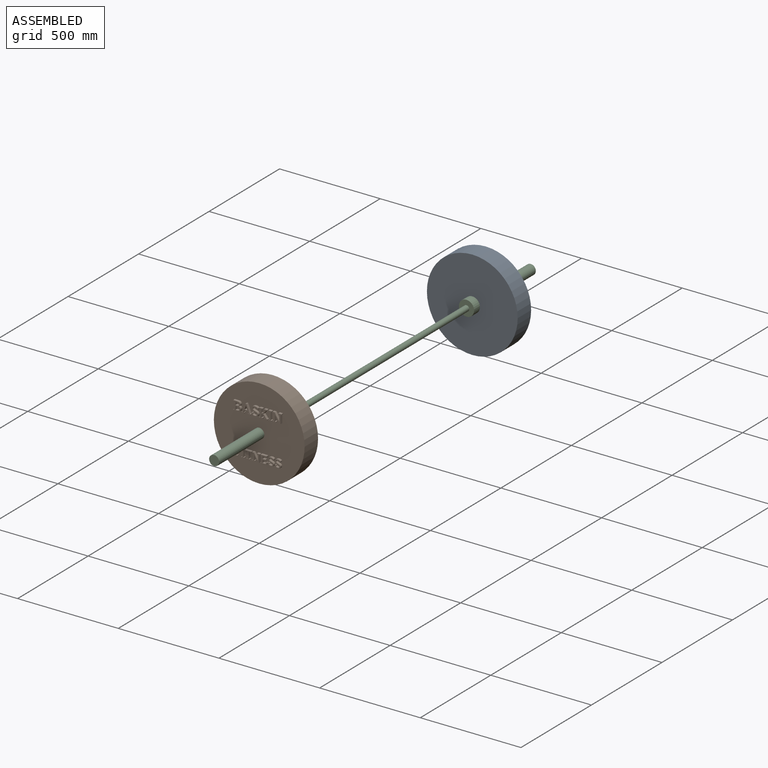
[diagram: assembled view]
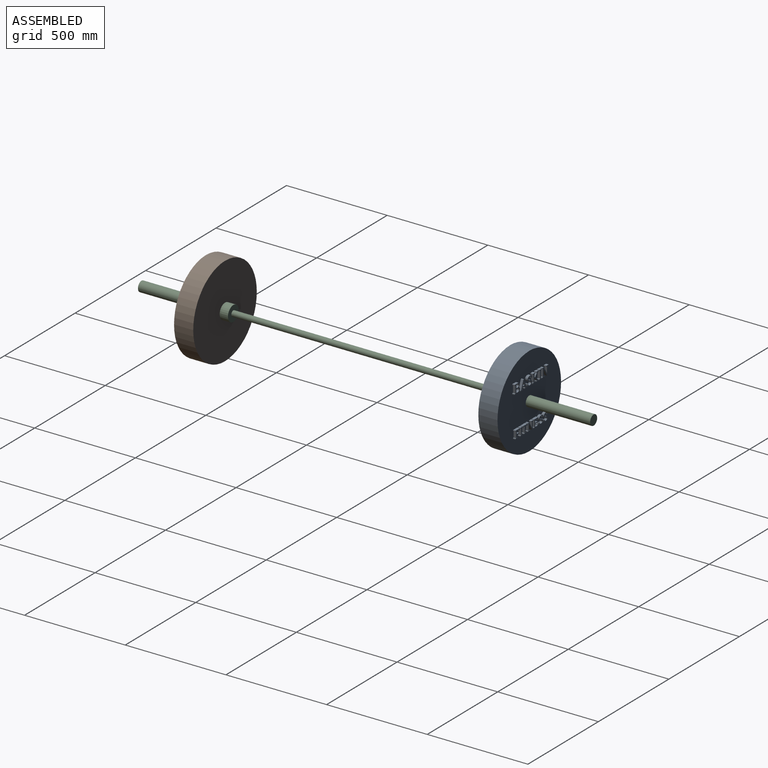
[diagram: assembled view, second angle]
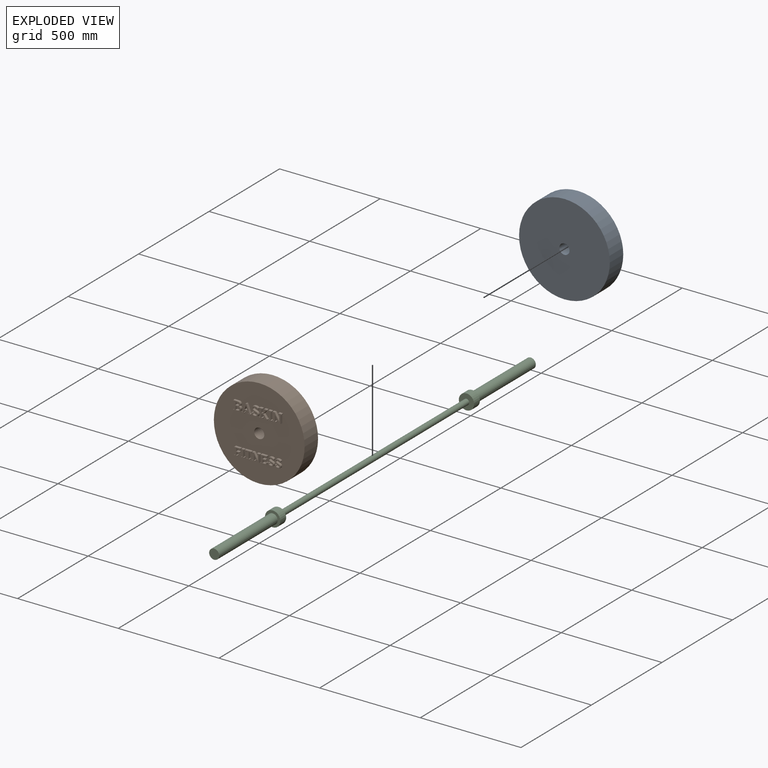
[diagram: exploded view]
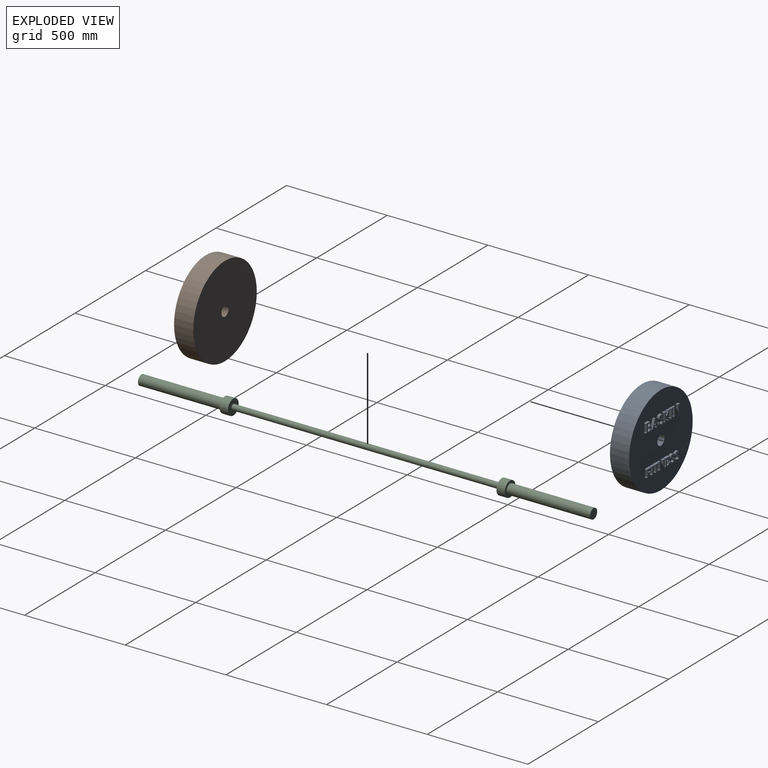
[diagram: exploded view, second angle]
ASSEMBLY  parts=3 mates=2
PART A: 310 faces, bbox 450.9x108x450.9 mm
  f0: plane 450.85x450.85mm, normal (0,-1,0), area 149426.1mm2, adj f1,f2,f4,f5,f6,f7,f8,f9
  f1: cylinder r=25.4mm len=95.25mm, axis (0,-1,0), area 15201.2mm2, adj f0,f3
  f2: cylinder r=225.42mm len=450.85mm, axis (0,-1,0), area 134910.9mm2, adj f0,f3
  f3: plane 450.85x450.85mm, normal (0,1,0), area 157617.7mm2, adj f1,f2
  f4: plane 20.07x12.7mm, normal (0,0,1), area 254.9mm2, adj f0,f5,f32,f33
  f5: plane 12.7x4mm, normal (-1,0,0), area 50.8mm2, adj f0,f4,f6,f33
  f6: plane 12.7x5.12mm, normal (-0.17,0,-0.99), area 66mm2, adj f0,f5,f7,f33
  f7: plane 36.09x12.7mm, normal (-1,0,0), area 458.3mm2, adj f0,f6,f8,f33
  f8: plane 12.7x5.12mm, normal (-0.17,0,0.99), area 66mm2, adj f0,f7,f9,f33
  f9: plane 12.7x3.97mm, normal (-1,0,0), area 50.4mm2, adj f0,f8,f10,f33
  f10: plane 22.01x12.7mm, normal (0,0,-1), area 279.6mm2, adj f0,f9,f11,f33
  f11: extruded ~12.7x11.08mm, area 149.8mm2, adj f0,f10,f12,f33
  f12: extruded ~12.7x9.61mm, area 137.4mm2, adj f0,f11,f13,f33
  f13: extruded ~12.7x7.39mm, area 100.5mm2, adj f0,f12,f14,f33
  f14: extruded ~12.7x6.52mm, area 99.7mm2, adj f0,f13,f15,f33
  f15: extruded ~12.7x5.11mm, area 80.2mm2, adj f0,f14,f16,f33
  f16: extruded ~12.7x5.46mm, area 75mm2, adj f0,f15,f17,f33
  f17: extruded ~12.7x9.29mm, area 133.6mm2, adj f0,f16,f32,f33
  f18: plane 12.7x11.64mm, normal (0,0,-1), area 147.8mm2, adj f19,f30,f33,f34
  f19: extruded ~12.7x6.02mm, area 84.6mm2, adj f18,f20,f33,f34
  f20: extruded ~12.7x6.32mm, area 85.9mm2, adj f19,f21,f33,f34
  f21: extruded ~12.7x5.93mm, area 83.6mm2, adj f20,f22,f33,f34
  f22: extruded ~12.7x6.59mm, area 89.9mm2, adj f21,f23,f33,f34
  f23: plane 12.7x10.69mm, normal (0,0,1), area 135.8mm2, adj f22,f30,f33,f34
  f24: plane 14.6x12.7mm, normal (1,0,0), area 185.4mm2, adj f25,f31,f33,f35
  f25: plane 12.7x8.75mm, normal (0,0,-1), area 111.1mm2, adj f24,f26,f33,f35
  f26: extruded ~12.7x6.73mm, area 90.3mm2, adj f25,f27,f33,f35
  f27: extruded ~12.7x5.56mm, area 79.4mm2, adj f26,f28,f33,f35
  f28: extruded ~12.7x5.22mm, area 73.5mm2, adj f27,f29,f33,f35
  f29: extruded ~12.7x5.4mm, area 74.6mm2, adj f28,f31,f33,f35
  f30: plane 16.64x12.7mm, normal (1,0,0), area 211.3mm2, adj f18,f23,f33,f34
  f31: plane 12.7x10.35mm, normal (0,0,1), area 131.4mm2, adj f24,f29,f33,f35
  f32: extruded ~12.7x11.21mm, area 150.4mm2, adj f0,f4,f17,f33
  f33: plane 45.8x37.18mm, normal (0,-1,0), area 823.2mm2, adj f4,f5,f6,f7,f8,f9,f10,f11
  f34: plane 19.63x16.64mm, normal (0,-1,0), area 301.9mm2, adj f18,f19,f20,f21,f22,f23,f30
  f35: plane 17.81x14.6mm, normal (0,-1,0), area 238mm2, adj f24,f25,f26,f27,f28,f29,f31
  f36: plane 12.7x3.97mm, normal (-1,0,0), area 50.4mm2, adj f0,f37,f55,f56
  f37: plane 13.12x12.7mm, normal (0,0,-1), area 166.6mm2, adj f0,f36,f38,f56
  f38: plane 12.7x3.97mm, normal (1,0,0), area 50.4mm2, adj f0,f37,f39,f56
  f39: plane 12.7x3.46mm, normal (0.17,0,0.99), area 44.6mm2, adj f0,f38,f40,f56
  f40: plane 12.7x8.44mm, normal (0.94,0,-0.35), area 114.2mm2, adj f0,f39,f41,f56
  f41: plane 18.34x12.7mm, normal (0,0,-1), area 232.9mm2, adj f0,f40,f42,f56
  f42: plane 12.7x8.44mm, normal (-0.94,0,-0.34), area 113.8mm2, adj f0,f41,f43,f56
  f43: plane 12.7x3.46mm, normal (-0.17,0,0.99), area 44.6mm2, adj f0,f42,f44,f56
  f44: plane 12.7x3.97mm, normal (-1,0,0), area 50.4mm2, adj f0,f43,f45,f56
  f45: plane 13.15x12.7mm, normal (0,0,-1), area 167mm2, adj f0,f44,f46,f56
  f46: plane 12.7x3.97mm, normal (1,0,0), area 50.4mm2, adj f0,f45,f47,f56
  f47: plane 12.7x3.36mm, normal (0.14,0,0.99), area 43.1mm2, adj f0,f46,f48,f56
  f48: plane 41.36x15.73mm, normal (0.93,0,0.36), area 562mm2, adj f0,f47,f49,f56
  f49: plane 12.7x5.31mm, normal (0,0,1), area 67.5mm2, adj f0,f48,f50,f56
  f50: plane 41.36x16.01mm, normal (-0.93,0,0.36), area 563.3mm2, adj f0,f49,f55,f56
  f51: plane 19.66x12.7mm, normal (0.94,0,-0.35), area 266mm2, adj f52,f54,f56,f57
  f52: plane 12.7x0.19mm, normal (0,0,-1), area 2.4mm2, adj f51,f53,f56,f57
  f53: plane 19.66x12.7mm, normal (-0.94,0,-0.34), area 265.5mm2, adj f52,f54,f56,f57
  f54: plane 14.54x12.7mm, normal (0,0,1), area 184.6mm2, adj f51,f53,f56,f57
  f55: plane 12.7x3.39mm, normal (-0.14,0,0.99), area 43.5mm2, adj f0,f36,f50,f56
  f56: plane 45.8x43.82mm, normal (0,-1,0), area 661.8mm2, adj f36,f37,f38,f39,f40,f41,f42,f43
  f57: plane 19.66x14.54mm, normal (0,-1,0), area 144.7mm2, adj f51,f52,f53,f54
  f58: plane 12.7x8.53mm, normal (1,0,0), area 108.3mm2, adj f0,f59,f87,f88
  f59: extruded ~12.7x6.34mm, area 95.9mm2, adj f0,f58,f60,f88
  f60: extruded ~12.7x8.76mm, area 113.9mm2, adj f0,f59,f61,f88
  f61: extruded ~12.7x11.86mm, area 160.3mm2, adj f0,f60,f62,f88
  f62: extruded ~12.7x8.95mm, area 132.4mm2, adj f0,f61,f63,f88
  f63: extruded ~12.7x8.46mm, area 123.6mm2, adj f0,f62,f64,f88
  f64: extruded ~12.7x11.36mm, area 159.5mm2, adj f0,f63,f65,f88
  f65: extruded ~12.7x8.33mm, area 116.2mm2, adj f0,f64,f66,f88
  f66: extruded ~12.7x5.26mm, area 75.6mm2, adj f0,f65,f67,f88
  f67: extruded ~12.7x5.38mm, area 79.7mm2, adj f0,f66,f68,f88
  f68: extruded ~12.7x7.41mm, area 99mm2, adj f0,f67,f69,f88
  f69: extruded ~12.7x5.94mm, area 76.8mm2, adj f0,f68,f70,f88
  f70: extruded ~12.7x4.28mm, area 62.8mm2, adj f0,f69,f71,f88
  f71: plane 12.7x6.57mm, normal (0.98,0,0.18), area 84.8mm2, adj f0,f70,f72,f88
  f72: plane 12.7x4.66mm, normal (0,0,1), area 59.2mm2, adj f0,f71,f73,f88
  f73: plane 12.7x8.53mm, normal (-1,0,0), area 108.3mm2, adj f0,f72,f74,f88
  f74: extruded ~12.7x6.68mm, area 103.3mm2, adj f0,f73,f75,f88
  f75: extruded ~12.7x9.39mm, area 122.1mm2, adj f0,f74,f76,f88
  f76: extruded ~12.7x11.81mm, area 158.7mm2, adj f0,f75,f77,f88
  f77: extruded ~12.7x8.9mm, area 131.9mm2, adj f0,f76,f78,f88
  f78: extruded ~12.7x8.65mm, area 123.5mm2, adj f0,f77,f79,f88
  f79: extruded ~12.7x11mm, area 156.6mm2, adj f0,f78,f80,f88
  f80: extruded ~12.7x8.7mm, area 119.8mm2, adj f0,f79,f81,f88
  f81: extruded ~12.7x4.98mm, area 74.8mm2, adj f0,f80,f82,f88
  f82: extruded ~12.7x5.46mm, area 80mm2, adj f0,f81,f83,f88
  f83: extruded ~12.7x7.58mm, area 101.8mm2, adj f0,f82,f84,f88
  f84: extruded ~12.7x5.47mm, area 70.5mm2, adj f0,f83,f85,f88
  f85: extruded ~12.7x3.77mm, area 54.4mm2, adj f0,f84,f86,f88
  f86: plane 12.7x6.54mm, normal (-0.98,0,-0.18), area 84.4mm2, adj f0,f85,f87,f88
  f87: plane 12.7x4.69mm, normal (0,0,-1), area 59.6mm2, adj f0,f58,f86,f88
  f88: plane 47.13x32.4mm, normal (0,-1,0), area 636.5mm2, adj f58,f59,f60,f61,f62,f63,f64,f65
  f89: plane 12.7x3.97mm, normal (-1,0,0), area 50.4mm2, adj f0,f90,f117,f118
  f90: plane 16.45x12.7mm, normal (0,0,-1), area 208.9mm2, adj f0,f89,f91,f118
  f91: plane 12.7x3.97mm, normal (1,0,0), area 50.4mm2, adj f0,f90,f92,f118
  f92: plane 12.7x5.12mm, normal (0.17,0,0.99), area 66mm2, adj f0,f91,f93,f118
  f93: plane 15.82x12.7mm, normal (1,0,0), area 201mm2, adj f0,f92,f94,f118
  f94: plane 12.7x5.35mm, normal (0,0,-1), area 67.9mm2, adj f0,f93,f95,f118
  f95: plane 16.26x13.06mm, normal (-0.78,0,-0.63), area 264.8mm2, adj f0,f94,f96,f118
  f96: plane 12.7x3.49mm, normal (-0.13,0,0.99), area 44.7mm2, adj f0,f95,f97,f118
  f97: plane 12.7x3.97mm, normal (-1,0,0), area 50.4mm2, adj f0,f96,f98,f118
  f98: plane 15.04x12.7mm, normal (0,0,-1), area 191mm2, adj f0,f97,f99,f118
  f99: plane 12.7x3.97mm, normal (1,0,0), area 50.4mm2, adj f0,f98,f100,f118
  f100: plane 12.7x4.31mm, normal (0.18,0,0.98), area 55.6mm2, adj f0,f99,f101,f118
  f101: plane 18.9x15.29mm, normal (0.78,0,0.63), area 308.8mm2, adj f0,f100,f102,f118
  f102: plane 17.36x14mm, normal (0.78,0,-0.63), area 283.3mm2, adj f0,f101,f103,f118
  f103: plane 12.7x4.31mm, normal (0.18,0,-0.98), area 55.6mm2, adj f0,f102,f104,f118
  f104: plane 12.7x4mm, normal (1,0,0), area 50.8mm2, adj f0,f103,f105,f118
  f105: plane 14.54x12.7mm, normal (0,0,1), area 184.6mm2, adj f0,f104,f106,f118
  f106: plane 12.7x4mm, normal (-1,0,0), area 50.8mm2, adj f0,f105,f107,f118
  f107: plane 12.7x3.43mm, normal (-0.13,0,-0.99), area 44mm2, adj f0,f106,f108,f118
  f108: plane 15.81x12.8mm, normal (-0.78,0,0.63), area 258.4mm2, adj f0,f107,f109,f118
  f109: plane 12.7x4.75mm, normal (0,0,1), area 60.3mm2, adj f0,f108,f110,f118
  f110: plane 15.38x12.7mm, normal (1,0,0), area 195.3mm2, adj f0,f109,f111,f118
  f111: plane 12.7x5.12mm, normal (0.17,0,-0.99), area 66mm2, adj f0,f110,f112,f118
  f112: plane 12.7x4mm, normal (1,0,0), area 50.8mm2, adj f0,f111,f113,f118
  f113: plane 16.45x12.7mm, normal (0,0,1), area 208.9mm2, adj f0,f112,f114,f118
  f114: plane 12.7x4mm, normal (-1,0,0), area 50.8mm2, adj f0,f113,f115,f118
  f115: plane 12.7x5.12mm, normal (-0.17,0,-0.99), area 66mm2, adj f0,f114,f116,f118
  f116: plane 36.09x12.7mm, normal (-1,0,0), area 458.3mm2, adj f0,f115,f117,f118
  f117: plane 12.7x5.12mm, normal (-0.17,0,0.99), area 66mm2, adj f0,f89,f116,f118
  f118: plane 45.8x41.27mm, normal (0,-1,0), area 792.5mm2, adj f89,f90,f91,f92,f93,f94,f95,f96
  f119: plane 12.7x5.12mm, normal (-0.17,0,-0.99), area 66mm2, adj f0,f120,f130,f131
  f120: plane 36.09x12.7mm, normal (-1,0,0), area 458.3mm2, adj f0,f119,f121,f131
  f121: plane 12.7x5.12mm, normal (-0.17,0,0.99), area 66mm2, adj f0,f120,f122,f131
  f122: plane 12.7x3.97mm, normal (-1,0,0), area 50.4mm2, adj f0,f121,f123,f131
  f123: plane 16.45x12.7mm, normal (0,0,-1), area 208.9mm2, adj f0,f122,f124,f131
  f124: plane 12.7x3.97mm, normal (1,0,0), area 50.4mm2, adj f0,f123,f125,f131
  f125: plane 12.7x5.12mm, normal (0.17,0,0.99), area 66mm2, adj f0,f124,f126,f131
  f126: plane 36.09x12.7mm, normal (1,0,0), area 458.3mm2, adj f0,f125,f127,f131
  f127: plane 12.7x5.12mm, normal (0.17,0,-0.99), area 66mm2, adj f0,f126,f128,f131
  f128: plane 12.7x4mm, normal (1,0,0), area 50.8mm2, adj f0,f127,f129,f131
  f129: plane 16.45x12.7mm, normal (0,0,1), area 208.9mm2, adj f0,f128,f130,f131
  f130: plane 12.7x4mm, normal (-1,0,0), area 50.8mm2, adj f0,f119,f129,f131
  f131: plane 45.8x16.45mm, normal (0,-1,0), area 374.5mm2, adj f119,f120,f121,f122,f123,f124,f125,f126
  f132: plane 16.45x12.7mm, normal (0,0,1), area 208.9mm2, adj f0,f133,f153,f154
  f133: plane 12.7x4mm, normal (-1,0,0), area 50.8mm2, adj f0,f132,f134,f154
  f134: plane 12.7x5.12mm, normal (-0.17,0,-0.99), area 66mm2, adj f0,f133,f135,f154
  f135: plane 30.39x12.7mm, normal (-1,0,0), area 385.9mm2, adj f0,f134,f136,f154
  f136: plane 12.7x0.19mm, normal (-0.3,0,0.95), area 2.5mm2, adj f0,f135,f137,f154
  f137: plane 35.32x22.01mm, normal (0.85,0,0.53), area 528.6mm2, adj f0,f136,f138,f154
  f138: plane 12.7x11.32mm, normal (0,0,1), area 143.8mm2, adj f0,f137,f139,f154
  f139: plane 12.7x4mm, normal (-1,0,0), area 50.8mm2, adj f0,f138,f140,f154
  f140: plane 12.7x5.12mm, normal (-0.17,0,-0.99), area 66mm2, adj f0,f139,f141,f154
  f141: plane 36.09x12.7mm, normal (-1,0,0), area 458.3mm2, adj f0,f140,f142,f154
  f142: plane 12.7x5.12mm, normal (-0.17,0,0.99), area 66mm2, adj f0,f141,f143,f154
  f143: plane 12.7x3.97mm, normal (-1,0,0), area 50.4mm2, adj f0,f142,f144,f154
  f144: plane 16.45x12.7mm, normal (0,0,-1), area 208.9mm2, adj f0,f143,f145,f154
  f145: plane 12.7x3.97mm, normal (1,0,0), area 50.4mm2, adj f0,f144,f146,f154
  f146: plane 12.7x5.12mm, normal (0.17,0,0.99), area 66mm2, adj f0,f145,f147,f154
  f147: plane 30.45x12.7mm, normal (1,0,0), area 386.7mm2, adj f0,f146,f148,f154
  f148: plane 12.7x0.19mm, normal (0.35,0,-0.94), area 2.6mm2, adj f0,f147,f149,f154
  f149: plane 35.36x22.01mm, normal (-0.85,0,-0.53), area 529mm2, adj f0,f148,f150,f154
  f150: plane 12.7x6.2mm, normal (0,0,-1), area 78.7mm2, adj f0,f149,f151,f154
  f151: plane 40.93x12.7mm, normal (1,0,0), area 519.8mm2, adj f0,f150,f152,f154
  f152: plane 12.7x5.12mm, normal (0.17,0,-0.99), area 66mm2, adj f0,f151,f153,f154
  f153: plane 12.7x4mm, normal (1,0,0), area 50.8mm2, adj f0,f132,f152,f154
  f154: plane 45.8x44.85mm, normal (0,-1,0), area 906.7mm2, adj f132,f133,f134,f135,f136,f137,f138,f139
  f155: plane 12.7x3.44mm, normal (-1,0,0), area 43.7mm2, adj f0,f156,f172,f173
  f156: plane 14.27x12.7mm, normal (0,0,-1), area 181.2mm2, adj f0,f155,f157,f173
  f157: plane 12.7x3.44mm, normal (1,0,0), area 43.7mm2, adj f0,f156,f158,f173
  f158: plane 12.7x4.44mm, normal (0.17,0,0.99), area 57.3mm2, adj f0,f157,f159,f173
  f159: plane 13.38x12.7mm, normal (1,0,0), area 169.9mm2, adj f0,f158,f160,f173
  f160: plane 15.36x12.7mm, normal (0,0,-1), area 195mm2, adj f0,f159,f161,f173
  f161: plane 12.7x4.23mm, normal (1,0,0), area 53.7mm2, adj f0,f160,f162,f173
  f162: plane 15.36x12.7mm, normal (0,0,1), area 195mm2, adj f0,f161,f163,f173
  f163: plane 13.7x12.7mm, normal (1,0,0), area 174mm2, adj f0,f162,f164,f173
  f164: plane 15.85x12.7mm, normal (0,0,-1), area 201.4mm2, adj f0,f163,f165,f173
  f165: plane 12.7x5.33mm, normal (-1,0,-0.08), area 67.9mm2, adj f0,f164,f166,f173
  f166: plane 12.7x4.58mm, normal (0,0,-1), area 58.2mm2, adj f0,f165,f167,f173
  f167: plane 12.7x9.55mm, normal (1,0,0), area 121.3mm2, adj f0,f166,f168,f173
  f168: plane 30.7x12.7mm, normal (0,0,1), area 389.8mm2, adj f0,f167,f169,f173
  f169: plane 12.7x3.47mm, normal (-1,0,0), area 44mm2, adj f0,f168,f170,f173
  f170: plane 12.7x4.44mm, normal (-0.17,0,-0.99), area 57.3mm2, adj f0,f169,f171,f173
  f171: plane 31.3x12.7mm, normal (-1,0,0), area 397.5mm2, adj f0,f170,f172,f173
  f172: plane 12.7x4.44mm, normal (-0.17,0,0.99), area 57.3mm2, adj f0,f155,f171,f173
  f173: plane 39.72x30.7mm, normal (0,-1,0), area 443.3mm2, adj f155,f156,f157,f158,f159,f160,f161,f162
  f174: plane 12.7x4.44mm, normal (-0.17,0,-0.99), area 57.3mm2, adj f0,f175,f185,f186
  f175: plane 31.3x12.7mm, normal (-1,0,0), area 397.5mm2, adj f0,f174,f176,f186
  f176: plane 12.7x4.44mm, normal (-0.17,0,0.99), area 57.3mm2, adj f0,f175,f177,f186
  f177: plane 12.7x3.44mm, normal (-1,0,0), area 43.7mm2, adj f0,f176,f178,f186
  f178: plane 14.27x12.7mm, normal (0,0,-1), area 181.2mm2, adj f0,f177,f179,f186
  f179: plane 12.7x3.44mm, normal (1,0,0), area 43.7mm2, adj f0,f178,f180,f186
  f180: plane 12.7x4.44mm, normal (0.17,0,0.99), area 57.3mm2, adj f0,f179,f181,f186
  f181: plane 31.3x12.7mm, normal (1,0,0), area 397.5mm2, adj f0,f180,f182,f186
  f182: plane 12.7x4.44mm, normal (0.17,0,-0.99), area 57.3mm2, adj f0,f181,f183,f186
  f183: plane 12.7x3.47mm, normal (1,0,0), area 44mm2, adj f0,f182,f184,f186
  f184: plane 14.27x12.7mm, normal (0,0,1), area 181.2mm2, adj f0,f183,f185,f186
  f185: plane 12.7x3.47mm, normal (-1,0,0), area 44mm2, adj f0,f174,f184,f186
  f186: plane 39.72x14.27mm, normal (0,-1,0), area 281.8mm2, adj f174,f175,f176,f177,f178,f179,f180,f181
  f187: plane 33.01x12.7mm, normal (0,0,1), area 419.2mm2, adj f0,f188,f202,f203
  f188: plane 12.7x8.78mm, normal (-1,0,0), area 111.5mm2, adj f0,f187,f189,f203
  f189: plane 12.7x4.61mm, normal (0,0,-1), area 58.5mm2, adj f0,f188,f190,f203
  f190: plane 12.7x4.56mm, normal (1,0,-0.08), area 58.1mm2, adj f0,f189,f191,f203
  f191: plane 12.7x8.84mm, normal (0,0,-1), area 112.2mm2, adj f0,f190,f192,f203
  f192: plane 31.3x12.7mm, normal (-1,0,0), area 397.5mm2, adj f0,f191,f193,f203
  f193: plane 12.7x4.44mm, normal (-0.17,0,0.99), area 57.3mm2, adj f0,f192,f194,f203
  f194: plane 12.7x3.44mm, normal (-1,0,0), area 43.7mm2, adj f0,f193,f195,f203
  f195: plane 14.27x12.7mm, normal (0,0,-1), area 181.2mm2, adj f0,f194,f196,f203
  f196: plane 12.7x3.44mm, normal (1,0,0), area 43.7mm2, adj f0,f195,f197,f203
  f197: plane 12.7x4.44mm, normal (0.17,0,0.99), area 57.3mm2, adj f0,f196,f198,f203
  f198: plane 31.3x12.7mm, normal (1,0,0), area 397.5mm2, adj f0,f197,f199,f203
  f199: plane 12.7x8.81mm, normal (0,0,-1), area 111.9mm2, adj f0,f198,f200,f203
  f200: plane 12.7x4.56mm, normal (-1,0,-0.09), area 58.1mm2, adj f0,f199,f201,f203
  f201: plane 12.7x4.58mm, normal (0,0,-1), area 58.2mm2, adj f0,f200,f202,f203
  f202: plane 12.7x8.78mm, normal (1,0,0), area 111.5mm2, adj f0,f187,f201,f203
  f203: plane 39.72x33.01mm, normal (0,-1,0), area 408mm2, adj f187,f188,f189,f190,f191,f192,f193,f194
  f204: plane 14.27x12.7mm, normal (0,0,1), area 181.2mm2, adj f0,f205,f225,f226
  f205: plane 12.7x3.47mm, normal (-1,0,0), area 44mm2, adj f0,f204,f206,f226
  f206: plane 12.7x4.44mm, normal (-0.17,0,-0.99), area 57.3mm2, adj f0,f205,f207,f226
  f207: plane 26.36x12.7mm, normal (-1,0,0), area 334.7mm2, adj f0,f206,f208,f226
  f208: plane 12.7x0.17mm, normal (-0.3,0,0.95), area 2.2mm2, adj f0,f207,f209,f226
  f209: plane 30.64x19.09mm, normal (0.85,0,0.53), area 458.4mm2, adj f0,f208,f210,f226
  f210: plane 12.7x9.82mm, normal (0,0,1), area 124.7mm2, adj f0,f209,f211,f226
  f211: plane 12.7x3.47mm, normal (-1,0,0), area 44mm2, adj f0,f210,f212,f226
  f212: plane 12.7x4.44mm, normal (-0.17,0,-0.99), area 57.3mm2, adj f0,f211,f213,f226
  f213: plane 31.3x12.7mm, normal (-1,0,0), area 397.5mm2, adj f0,f212,f214,f226
  f214: plane 12.7x4.44mm, normal (-0.17,0,0.99), area 57.3mm2, adj f0,f213,f215,f226
  f215: plane 12.7x3.44mm, normal (-1,0,0), area 43.7mm2, adj f0,f214,f216,f226
  f216: plane 14.27x12.7mm, normal (0,0,-1), area 181.2mm2, adj f0,f215,f217,f226
  f217: plane 12.7x3.44mm, normal (1,0,0), area 43.7mm2, adj f0,f216,f218,f226
  f218: plane 12.7x4.44mm, normal (0.17,0,0.99), area 57.3mm2, adj f0,f217,f219,f226
  f219: plane 26.41x12.7mm, normal (1,0,0), area 335.4mm2, adj f0,f218,f220,f226
  f220: plane 12.7x0.17mm, normal (0.35,0,-0.94), area 2.2mm2, adj f0,f219,f221,f226
  f221: plane 30.67x19.09mm, normal (-0.85,0,-0.53), area 458.8mm2, adj f0,f220,f222,f226
  f222: plane 12.7x5.38mm, normal (0,0,-1), area 68.3mm2, adj f0,f221,f223,f226
  f223: plane 35.5x12.7mm, normal (1,0,0), area 450.8mm2, adj f0,f222,f224,f226
  f224: plane 12.7x4.44mm, normal (0.17,0,-0.99), area 57.3mm2, adj f0,f223,f225,f226
  f225: plane 12.7x3.47mm, normal (1,0,0), area 44mm2, adj f0,f204,f224,f226
  f226: plane 39.72x38.9mm, normal (0,-1,0), area 682.1mm2, adj f204,f205,f206,f207,f208,f209,f210,f211
  f227: plane 30.8x12.7mm, normal (0,0,-1), area 391.2mm2, adj f0,f228,f246,f247
  f228: plane 12.7x9.53mm, normal (1,0,0), area 121mm2, adj f0,f227,f229,f247
  f229: plane 12.7x4.58mm, normal (0,0,1), area 58.2mm2, adj f0,f228,f230,f247
  f230: plane 12.7x5.33mm, normal (-1,0,0.08), area 67.9mm2, adj f0,f229,f231,f247
  f231: plane 15.96x12.7mm, normal (0,0,1), area 202.7mm2, adj f0,f230,f232,f247
  f232: plane 14.21x12.7mm, normal (1,0,0), area 180.5mm2, adj f0,f231,f233,f247
  f233: plane 15.2x12.7mm, normal (0,0,-1), area 193mm2, adj f0,f232,f234,f247
  f234: plane 12.7x4.23mm, normal (1,0,0), area 53.8mm2, adj f0,f233,f235,f247
  f235: plane 15.2x12.7mm, normal (0,0,1), area 193mm2, adj f0,f234,f236,f247
  f236: plane 12.85x12.7mm, normal (1,0,0), area 163.2mm2, adj f0,f235,f237,f247
  f237: plane 15.64x12.7mm, normal (0,0,-1), area 198.6mm2, adj f0,f236,f238,f247
  f238: plane 12.7x5.33mm, normal (-1,0,-0.08), area 67.9mm2, adj f0,f237,f239,f247
  f239: plane 12.7x4.61mm, normal (0,0,-1), area 58.5mm2, adj f0,f238,f240,f247
  f240: plane 12.7x9.55mm, normal (1,0,0), area 121.3mm2, adj f0,f239,f241,f247
  f241: plane 30.5x12.7mm, normal (0,0,1), area 387.4mm2, adj f0,f240,f242,f247
  f242: plane 12.7x3.47mm, normal (-1,0,0), area 44mm2, adj f0,f241,f243,f247
  f243: plane 12.7x4.44mm, normal (-0.17,0,-0.99), area 57.3mm2, adj f0,f242,f244,f247
  f244: plane 31.3x12.7mm, normal (-1,0,0), area 397.5mm2, adj f0,f243,f245,f247
  f245: plane 12.7x4.44mm, normal (-0.17,0,0.99), area 57.3mm2, adj f0,f244,f246,f247
  f246: plane 12.7x3.44mm, normal (-1,0,0), area 43.7mm2, adj f0,f227,f245,f247
  f247: plane 39.72x30.8mm, normal (0,-1,0), area 538.8mm2, adj f227,f228,f229,f230,f231,f232,f233,f234
  f248: plane 12.7x7.39mm, normal (1,0,0), area 93.9mm2, adj f0,f249,f277,f278
  f249: extruded ~12.7x5.5mm, area 83.2mm2, adj f0,f248,f250,f278
  f250: extruded ~12.7x7.6mm, area 98.8mm2, adj f0,f249,f251,f278
  f251: extruded ~12.7x10.29mm, area 139.1mm2, adj f0,f250,f252,f278
  f252: extruded ~12.7x7.76mm, area 114.9mm2, adj f0,f251,f253,f278
  f253: extruded ~12.7x7.34mm, area 107.2mm2, adj f0,f252,f254,f278
  f254: extruded ~12.7x9.85mm, area 138.3mm2, adj f0,f253,f255,f278
  f255: extruded ~12.7x7.23mm, area 100.8mm2, adj f0,f254,f256,f278
  f256: extruded ~12.7x4.57mm, area 65.6mm2, adj f0,f255,f257,f278
  f257: extruded ~12.7x4.67mm, area 69.2mm2, adj f0,f256,f258,f278
  f258: extruded ~12.7x6.43mm, area 85.9mm2, adj f0,f257,f259,f278
  f259: extruded ~12.7x5.16mm, area 66.6mm2, adj f0,f258,f260,f278
  f260: extruded ~12.7x3.71mm, area 54.4mm2, adj f0,f259,f261,f278
  f261: plane 12.7x5.7mm, normal (0.98,0,0.18), area 73.6mm2, adj f0,f260,f262,f278
  f262: plane 12.7x4.04mm, normal (0,0,1), area 51.3mm2, adj f0,f261,f263,f278
  f263: plane 12.7x7.39mm, normal (-1,0,0), area 93.9mm2, adj f0,f262,f264,f278
  f264: extruded ~12.7x5.8mm, area 89.6mm2, adj f0,f263,f265,f278
  f265: extruded ~12.7x8.15mm, area 105.9mm2, adj f0,f264,f266,f278
  f266: extruded ~12.7x10.25mm, area 137.7mm2, adj f0,f265,f267,f278
  f267: extruded ~12.7x7.72mm, area 114.4mm2, adj f0,f266,f268,f278
  f268: extruded ~12.7x7.5mm, area 107.1mm2, adj f0,f267,f269,f278
  f269: extruded ~12.7x9.54mm, area 135.8mm2, adj f0,f268,f270,f278
  f270: extruded ~12.7x7.54mm, area 103.9mm2, adj f0,f269,f271,f278
  f271: extruded ~12.7x4.32mm, area 64.9mm2, adj f0,f270,f272,f278
  f272: extruded ~12.7x4.74mm, area 69.3mm2, adj f0,f271,f273,f278
  f273: extruded ~12.7x6.58mm, area 88.3mm2, adj f0,f272,f274,f278
  f274: extruded ~12.7x4.75mm, area 61.1mm2, adj f0,f273,f275,f278
  f275: extruded ~12.7x3.27mm, area 47.2mm2, adj f0,f274,f276,f278
  f276: plane 12.7x5.67mm, normal (-0.98,0,-0.18), area 73.2mm2, adj f0,f275,f277,f278
  f277: plane 12.7x4.07mm, normal (0,0,-1), area 51.7mm2, adj f0,f248,f276,f278
  f278: plane 40.88x28.1mm, normal (0,-1,0), area 478.8mm2, adj f248,f249,f250,f251,f252,f253,f254,f255
  f279: plane 12.7x7.39mm, normal (1,0,0), area 93.9mm2, adj f0,f280,f308,f309
  f280: extruded ~12.7x5.5mm, area 83.2mm2, adj f0,f279,f281,f309
  f281: extruded ~12.7x7.6mm, area 98.8mm2, adj f0,f280,f282,f309
  f282: extruded ~12.7x10.29mm, area 139.1mm2, adj f0,f281,f283,f309
  f283: extruded ~12.7x7.76mm, area 114.9mm2, adj f0,f282,f284,f309
  f284: extruded ~12.7x7.34mm, area 107.2mm2, adj f0,f283,f285,f309
  f285: extruded ~12.7x9.85mm, area 138.3mm2, adj f0,f284,f286,f309
  f286: extruded ~12.7x7.23mm, area 100.8mm2, adj f0,f285,f287,f309
  f287: extruded ~12.7x4.57mm, area 65.6mm2, adj f0,f286,f288,f309
  f288: extruded ~12.7x4.67mm, area 69.2mm2, adj f0,f287,f289,f309
  f289: extruded ~12.7x6.43mm, area 85.9mm2, adj f0,f288,f290,f309
  f290: extruded ~12.7x5.16mm, area 66.6mm2, adj f0,f289,f291,f309
  f291: extruded ~12.7x3.71mm, area 54.4mm2, adj f0,f290,f292,f309
  f292: plane 12.7x5.7mm, normal (0.98,0,0.18), area 73.6mm2, adj f0,f291,f293,f309
  f293: plane 12.7x4.04mm, normal (0,0,1), area 51.3mm2, adj f0,f292,f294,f309
  f294: plane 12.7x7.39mm, normal (-1,0,0), area 93.9mm2, adj f0,f293,f295,f309
  f295: extruded ~12.7x5.8mm, area 89.6mm2, adj f0,f294,f296,f309
  f296: extruded ~12.7x8.15mm, area 105.9mm2, adj f0,f295,f297,f309
  f297: extruded ~12.7x10.25mm, area 137.7mm2, adj f0,f296,f298,f309
  f298: extruded ~12.7x7.72mm, area 114.4mm2, adj f0,f297,f299,f309
  f299: extruded ~12.7x7.5mm, area 107.1mm2, adj f0,f298,f300,f309
  f300: extruded ~12.7x9.54mm, area 135.8mm2, adj f0,f299,f301,f309
  f301: extruded ~12.7x7.54mm, area 103.9mm2, adj f0,f300,f302,f309
  f302: extruded ~12.7x4.32mm, area 64.9mm2, adj f0,f301,f303,f309
  f303: extruded ~12.7x4.74mm, area 69.3mm2, adj f0,f302,f304,f309
  f304: extruded ~12.7x6.58mm, area 88.3mm2, adj f0,f303,f305,f309
  f305: extruded ~12.7x4.75mm, area 61.1mm2, adj f0,f304,f306,f309
  f306: extruded ~12.7x3.27mm, area 47.2mm2, adj f0,f305,f307,f309
  f307: plane 12.7x5.67mm, normal (-0.98,0,-0.18), area 73.2mm2, adj f0,f306,f308,f309
  f308: plane 12.7x4.07mm, normal (0,0,-1), area 51.7mm2, adj f0,f279,f307,f309
  f309: plane 40.88x28.1mm, normal (0,-1,0), area 478.8mm2, adj f279,f280,f281,f282,f283,f284,f285,f286
PART B: same geometry as A
PART C: 11 faces, bbox 2246.1x76.2x76.2 mm
  f0: cylinder r=25mm len=415mm, axis (1,0,0), area 65188mm2, adj f1,f4
  f1: plane 50x50mm, normal (1,0,0), area 1963.5mm2, adj f0
  f2: cylinder r=38.1mm len=76.2mm, axis (1,0,0), area 9880.8mm2, adj f3,f4
  f3: plane 76.2x76.2mm, normal (-1,0,0), area 3944.6mm2, adj f2,f5
  f4: plane 76.2x76.2mm, normal (1,0,0), area 2596.9mm2, adj f0,f2
  f5: cylinder r=14mm len=1333.5mm, axis (1,0,0), area 117300.8mm2, adj f3,f8
  f6: cylinder r=38.1mm len=76.2mm, axis (1,0,0), area 9880.8mm2, adj f7,f8
  f7: plane 76.2x76.2mm, normal (-1,0,0), area 2596.9mm2, adj f6,f9
  f8: plane 76.2x76.2mm, normal (1,0,0), area 3944.6mm2, adj f5,f6
  f9: cylinder r=25mm len=415mm, axis (1,0,0), area 65188mm2, adj f7,f10
  f10: plane 50x50mm, normal (-1,0,0), area 1963.5mm2, adj f9
PLACE A rot(axis=(0,0,1),180deg) t=(0,1606.55,0)mm
PLACE B at identity fixed
PLACE C rot(axis=(0.58,-0.58,-0.58),120deg) t=(0,-319.75,0)mm
MATE fastened A.f1 <-> C.f0  axis (0,-1,0) through (0,1511.3,0)mm
MATE fastened B.f1 <-> C.f0  axis (0,1,0) through (0,95.25,0)mm
